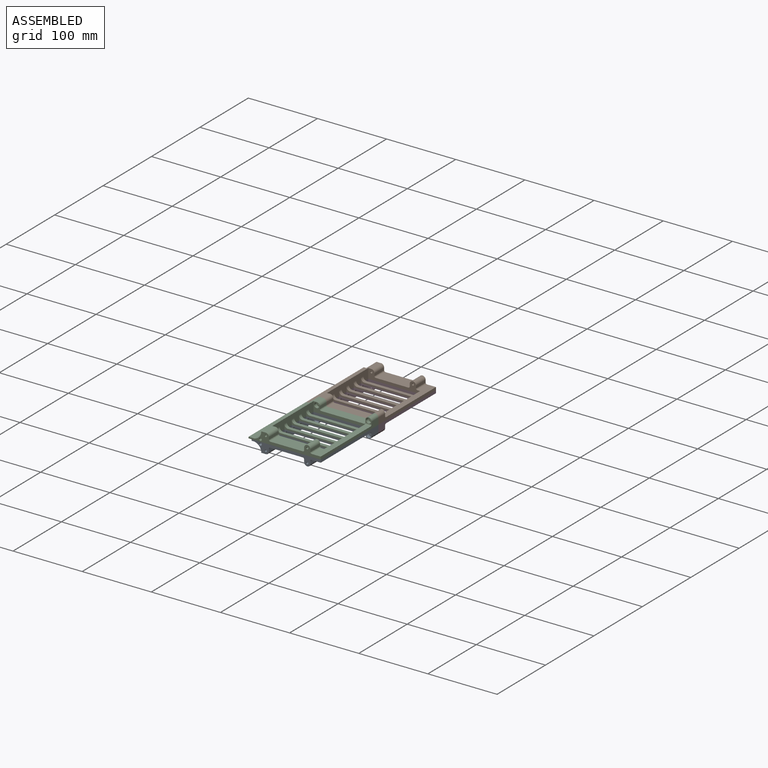
[diagram: assembled view]
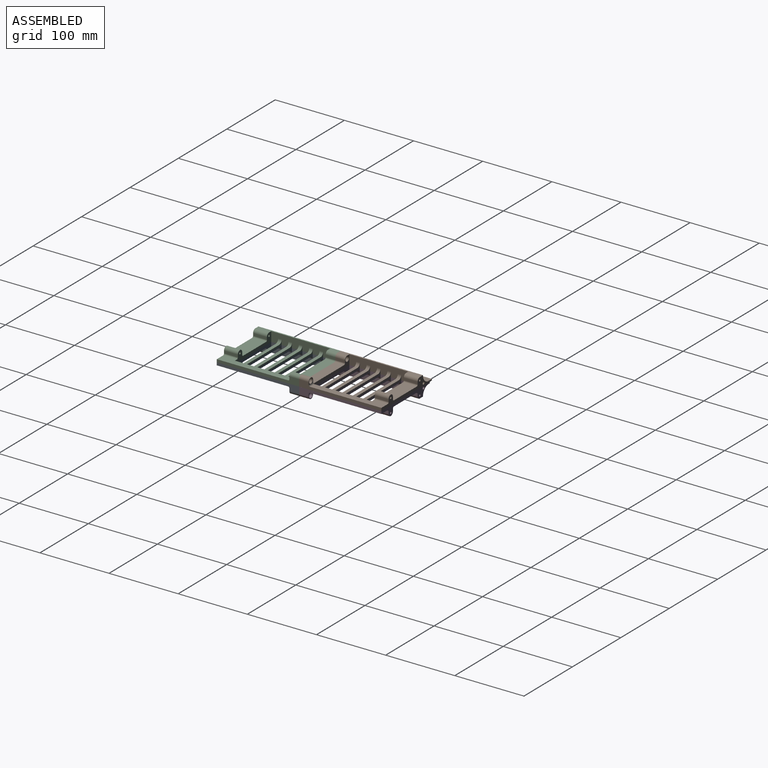
[diagram: assembled view, second angle]
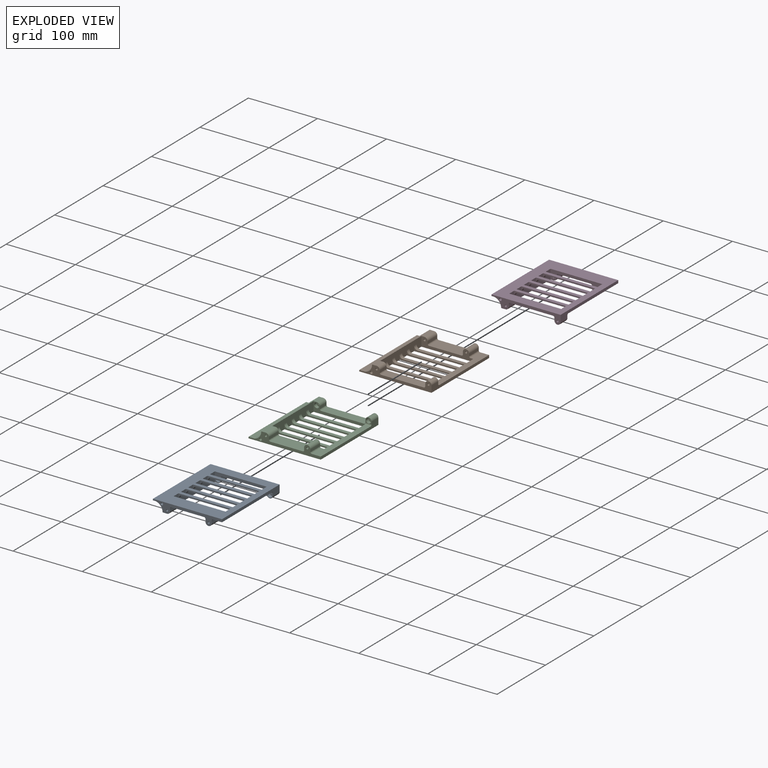
[diagram: exploded view]
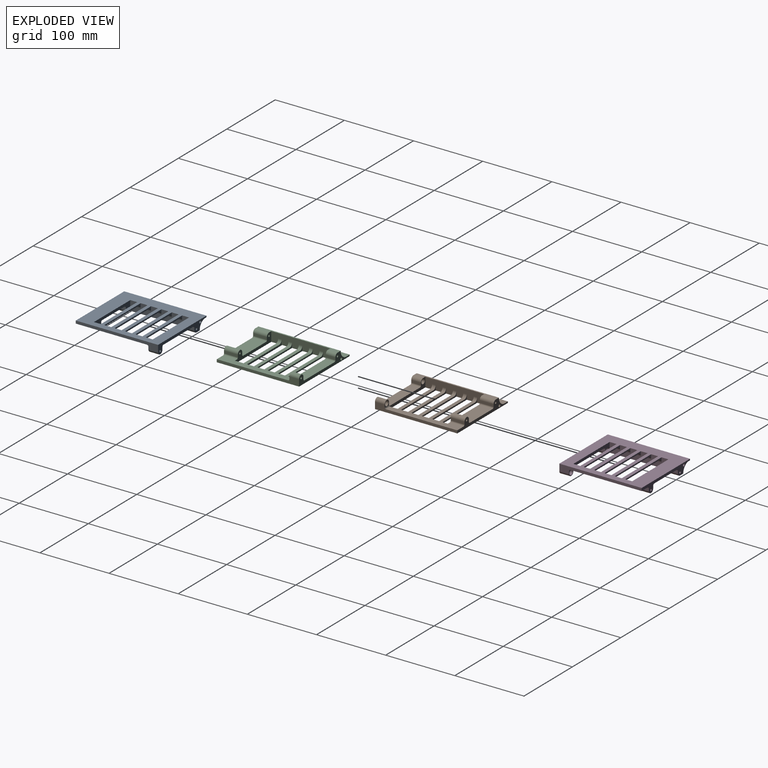
[diagram: exploded view, second angle]
ASSEMBLY  parts=4 mates=3
PART A: 59 faces, bbox 99.9x119x14 mm
  f0: plane 103x12.95mm, normal (0,0,1), area 1001.4mm2, adj f17,f18,f20,f27,f49,f52
  f1: plane 85x14mm, normal (1,0,0), area 1015mm2, adj f9,f11,f12,f13,f14,f15,f16,f20
  f2: plane 61.95x14mm, normal (0,0,1), area 867.2mm2, adj f12,f19,f48,f50
  f3: plane 47x20mm, normal (0,0,1), area 940mm2, adj f17,f20,f51,f53
  f4: plane 70x5mm, normal (0,0,1), area 350mm2, adj f21,f25,f27,f58
  f5: plane 70x5mm, normal (0,0,1), area 350mm2, adj f16,f24,f27,f57
  f6: plane 70x5mm, normal (0,0,1), area 350mm2, adj f15,f23,f27,f56
  f7: plane 70x5mm, normal (0,0,1), area 350mm2, adj f14,f22,f27,f55
  f8: plane 70x5mm, normal (0,0,1), area 350mm2, adj f11,f13,f27,f54
  f9: plane 119x6.5mm, normal (0,0,1), area 391mm2, adj f1,f12,f17,f19,f20,f29,f37,f39
  f10: plane 119x4mm, normal (0,0,1), area 476mm2, adj f17,f19,f26,f29
  f11: plane 75x7mm, normal (0,-1,0), area 155.4mm2, adj f1,f8,f27,f28,f54
  f12: plane 83.95x14mm, normal (0,1,0), area 373.8mm2, adj f1,f2,f9,f18,f27,f28,f34,f35
  f13: plane 75x7mm, normal (0,1,0), area 155.4mm2, adj f1,f8,f27,f28,f54
  f14: plane 75x7mm, normal (0,1,0), area 155.4mm2, adj f1,f7,f27,f28,f55
  f15: plane 75x7mm, normal (0,1,0), area 155.4mm2, adj f1,f6,f27,f28,f56
  f16: plane 75x7mm, normal (0,1,0), area 155.4mm2, adj f1,f5,f27,f28,f57
  f17: plane 99.95x14mm, normal (0,1,0), area 565.2mm2, adj f0,f3,f9,f10,f18,f26,f28,f29
  f18: plane 119x9.5mm, normal (1,0,0), area 553.9mm2, adj f0,f12,f17,f19,f28,f36,f49
  f19: plane 99.95x14mm, normal (0,-1,0), area 564.4mm2, adj f2,f9,f10,f18,f26,f28,f29,f30
  f20: plane 75x14mm, normal (0,-1,0), area 455.4mm2, adj f0,f1,f3,f9,f27,f28,f31,f32
  f21: plane 75x7mm, normal (0,1,0), area 155.4mm2, adj f1,f4,f27,f28,f58
  f22: plane 75x7mm, normal (0,-1,0), area 155.4mm2, adj f1,f7,f27,f28,f55
  f23: plane 75x7mm, normal (0,-1,0), area 155.4mm2, adj f1,f6,f27,f28,f56
  f24: plane 75x7mm, normal (0,-1,0), area 155.4mm2, adj f1,f5,f27,f28,f57
  f25: plane 75x7mm, normal (0,-1,0), area 155.4mm2, adj f1,f4,f27,f28,f58
  f26: plane 119x2mm, normal (-1,0,0), area 238mm2, adj f10,f17,f19,f28
  f27: plane 85x6mm, normal (-1,0,0), area 290.9mm2, adj f0,f4,f5,f6,f7,f8,f11,f12
  f28: plane 119x99.95mm, normal (0,0,-1), area 7393.5mm2, adj f1,f11,f12,f13,f14,f15,f16,f17
  f29: cylinder r=12.08mm len=119mm, axis (0,1,0), area 2021.3mm2, adj f9,f10,f17,f19
  f30: cylinder r=1.9mm len=119mm, axis (0,1,0), area 1420.6mm2, adj f17,f19
  f31: plane 20x3.5mm, normal (1,0,0), area 70mm2, adj f17,f20,f38,f52
  f32: plane 20x3.5mm, normal (-1,0,0), area 70mm2, adj f17,f20,f38,f53
  f33: plane 20x3.5mm, normal (1,0,0), area 70mm2, adj f17,f20,f39,f51
  f34: plane 14x3.5mm, normal (-1,0,0), area 49mm2, adj f12,f19,f36,f50
  f35: plane 14x3.5mm, normal (1,0,0), area 49mm2, adj f12,f19,f37,f48
  f36: cylinder r=4.5mm len=14mm, axis (0,1,0), area 197.9mm2, adj f12,f18,f19,f34
  f37: cylinder r=4.5mm len=14mm, axis (0,1,0), area 99mm2, adj f9,f12,f19,f35
  f38: cylinder r=4.5mm len=20mm, axis (0,1,0), area 282.7mm2, adj f17,f20,f31,f32
  f39: cylinder r=4.5mm len=20mm, axis (0,1,0), area 141.4mm2, adj f9,f17,f20,f33
  f40: cylinder r=1.5mm len=9mm, axis (0,1,0), area 84.8mm2, adj f19,f41
  f41: plane 7x7mm, normal (0,1,0), area 31.4mm2, adj f40,f42
  f42: cylinder r=3.5mm len=7mm, axis (0,1,0), area 110mm2, adj f12,f41
  f43: cylinder r=1.5mm len=9mm, axis (0,1,0), area 84.8mm2, adj f19,f44
  f44: plane 7x7mm, normal (0,1,0), area 31.4mm2, adj f43,f45
  f45: cylinder r=3.5mm len=7mm, axis (0,1,0), area 110mm2, adj f12,f44
  f46: cylinder r=1.5mm len=20mm, axis (0,1,0), area 188.5mm2, adj f17,f20
  f47: cylinder r=1.5mm len=20mm, axis (0,1,0), area 188.5mm2, adj f17,f20
  f48: cylinder r=2mm len=14mm, axis (0,1,0), area 44mm2, adj f2,f12,f19,f35
  f49: cylinder r=2mm len=8.95mm, axis (-1,0,0), area 28.1mm2, adj f0,f12,f18,f27
  f50: cylinder r=2mm len=14mm, axis (0,-1,0), area 44mm2, adj f2,f12,f19,f34
  f51: cylinder r=2mm len=20mm, axis (0,1,0), area 62.8mm2, adj f3,f17,f20,f33
  f52: cylinder r=2mm len=20mm, axis (0,1,0), area 62.8mm2, adj f0,f17,f20,f31
  f53: cylinder r=2mm len=20mm, axis (0,-1,0), area 62.8mm2, adj f3,f17,f20,f32
  f54: cylinder r=5mm len=5mm, axis (0,-1,0), area 39.3mm2, adj f1,f8,f11,f13
  f55: cylinder r=5mm len=5mm, axis (0,-1,0), area 39.3mm2, adj f1,f7,f14,f22
  f56: cylinder r=5mm len=5mm, axis (0,-1,0), area 39.3mm2, adj f1,f6,f15,f23
  f57: cylinder r=5mm len=5mm, axis (0,-1,0), area 39.3mm2, adj f1,f5,f16,f24
  f58: cylinder r=5mm len=5mm, axis (0,-1,0), area 39.3mm2, adj f1,f4,f21,f25
PART B: 59 faces, bbox 104.4x119x14 mm
  f0: plane 103x12.95mm, normal (0,0,1), area 1001.4mm2, adj f17,f18,f20,f27,f49,f52
  f1: plane 85x14mm, normal (1,0,0), area 1015mm2, adj f9,f11,f12,f13,f14,f15,f16,f20
  f2: plane 61.95x14mm, normal (0,0,1), area 867.2mm2, adj f12,f19,f48,f50
  f3: plane 47x20mm, normal (0,0,1), area 940mm2, adj f17,f20,f51,f53
  f4: plane 70x5mm, normal (0,0,1), area 350mm2, adj f21,f25,f27,f58
  f5: plane 70x5mm, normal (0,0,1), area 350mm2, adj f16,f24,f27,f57
  f6: plane 70x5mm, normal (0,0,1), area 350mm2, adj f15,f23,f27,f56
  f7: plane 70x5mm, normal (0,0,1), area 350mm2, adj f14,f22,f27,f55
  f8: plane 70x5mm, normal (0,0,1), area 350mm2, adj f11,f13,f27,f54
  f9: plane 119x6.5mm, normal (0,0,1), area 391mm2, adj f1,f12,f17,f19,f20,f29,f37,f39
  f10: plane 119x8.5mm, normal (0,0,1), area 1011.5mm2, adj f17,f19,f26,f29
  f11: plane 75x7mm, normal (0,-1,0), area 155.4mm2, adj f1,f8,f27,f28,f54
  f12: plane 83.95x14mm, normal (0,1,0), area 373.8mm2, adj f1,f2,f9,f18,f27,f28,f34,f35
  f13: plane 75x7mm, normal (0,1,0), area 155.4mm2, adj f1,f8,f27,f28,f54
  f14: plane 75x7mm, normal (0,1,0), area 155.4mm2, adj f1,f7,f27,f28,f55
  f15: plane 75x7mm, normal (0,1,0), area 155.4mm2, adj f1,f6,f27,f28,f56
  f16: plane 75x7mm, normal (0,1,0), area 155.4mm2, adj f1,f5,f27,f28,f57
  f17: plane 104.45x14mm, normal (0,1,0), area 574.2mm2, adj f0,f3,f9,f10,f18,f26,f28,f29
  f18: plane 119x9.5mm, normal (1,0,0), area 553.9mm2, adj f0,f12,f17,f19,f28,f36,f49
  f19: plane 104.45x14mm, normal (0,-1,0), area 573.4mm2, adj f2,f9,f10,f18,f26,f28,f29,f30
  f20: plane 75x14mm, normal (0,-1,0), area 455.4mm2, adj f0,f1,f3,f9,f27,f28,f31,f32
  f21: plane 75x7mm, normal (0,1,0), area 155.4mm2, adj f1,f4,f27,f28,f58
  f22: plane 75x7mm, normal (0,-1,0), area 155.4mm2, adj f1,f7,f27,f28,f55
  f23: plane 75x7mm, normal (0,-1,0), area 155.4mm2, adj f1,f6,f27,f28,f56
  f24: plane 75x7mm, normal (0,-1,0), area 155.4mm2, adj f1,f5,f27,f28,f57
  f25: plane 75x7mm, normal (0,-1,0), area 155.4mm2, adj f1,f4,f27,f28,f58
  f26: plane 119x2mm, normal (-1,0,0), area 238mm2, adj f10,f17,f19,f28
  f27: plane 85x6mm, normal (-1,0,0), area 290.9mm2, adj f0,f4,f5,f6,f7,f8,f11,f12
  f28: plane 119x104.45mm, normal (0,0,-1), area 7929mm2, adj f1,f11,f12,f13,f14,f15,f16,f17
  f29: cylinder r=12.08mm len=119mm, axis (0,1,0), area 2021.3mm2, adj f9,f10,f17,f19
  f30: cylinder r=1.9mm len=119mm, axis (0,1,0), area 1420.6mm2, adj f17,f19
  f31: plane 20x3.5mm, normal (1,0,0), area 70mm2, adj f17,f20,f38,f52
  f32: plane 20x3.5mm, normal (-1,0,0), area 70mm2, adj f17,f20,f38,f53
  f33: plane 20x3.5mm, normal (1,0,0), area 70mm2, adj f17,f20,f39,f51
  f34: plane 14x3.5mm, normal (-1,0,0), area 49mm2, adj f12,f19,f36,f50
  f35: plane 14x3.5mm, normal (1,0,0), area 49mm2, adj f12,f19,f37,f48
  f36: cylinder r=4.5mm len=14mm, axis (0,1,0), area 197.9mm2, adj f12,f18,f19,f34
  f37: cylinder r=4.5mm len=14mm, axis (0,1,0), area 99mm2, adj f9,f12,f19,f35
  f38: cylinder r=4.5mm len=20mm, axis (0,1,0), area 282.7mm2, adj f17,f20,f31,f32
  f39: cylinder r=4.5mm len=20mm, axis (0,1,0), area 141.4mm2, adj f9,f17,f20,f33
  f40: cylinder r=1.5mm len=9mm, axis (0,1,0), area 84.8mm2, adj f19,f41
  f41: plane 7x7mm, normal (0,1,0), area 31.4mm2, adj f40,f42
  f42: cylinder r=3.5mm len=7mm, axis (0,1,0), area 110mm2, adj f12,f41
  f43: cylinder r=1.5mm len=9mm, axis (0,1,0), area 84.8mm2, adj f19,f44
  f44: plane 7x7mm, normal (0,1,0), area 31.4mm2, adj f43,f45
  f45: cylinder r=3.5mm len=7mm, axis (0,1,0), area 110mm2, adj f12,f44
  f46: cylinder r=1.5mm len=20mm, axis (0,1,0), area 188.5mm2, adj f17,f20
  f47: cylinder r=1.5mm len=20mm, axis (0,1,0), area 188.5mm2, adj f17,f20
  f48: cylinder r=2mm len=14mm, axis (0,1,0), area 44mm2, adj f2,f12,f19,f35
  f49: cylinder r=2mm len=8.95mm, axis (-1,0,0), area 28.1mm2, adj f0,f12,f18,f27
  f50: cylinder r=2mm len=14mm, axis (0,-1,0), area 44mm2, adj f2,f12,f19,f34
  f51: cylinder r=2mm len=20mm, axis (0,1,0), area 62.8mm2, adj f3,f17,f20,f33
  f52: cylinder r=2mm len=20mm, axis (0,1,0), area 62.8mm2, adj f0,f17,f20,f31
  f53: cylinder r=2mm len=20mm, axis (0,-1,0), area 62.8mm2, adj f3,f17,f20,f32
  f54: cylinder r=5mm len=5mm, axis (0,-1,0), area 39.3mm2, adj f1,f8,f11,f13
  f55: cylinder r=5mm len=5mm, axis (0,-1,0), area 39.3mm2, adj f1,f7,f14,f22
  f56: cylinder r=5mm len=5mm, axis (0,-1,0), area 39.3mm2, adj f1,f6,f15,f23
  f57: cylinder r=5mm len=5mm, axis (0,-1,0), area 39.3mm2, adj f1,f5,f16,f24
  f58: cylinder r=5mm len=5mm, axis (0,-1,0), area 39.3mm2, adj f1,f4,f21,f25
PART C: 59 faces, bbox 104.4x119x14 mm
  f0: plane 103x12.95mm, normal (0,0,1), area 1001.4mm2, adj f17,f18,f20,f27,f49,f52
  f1: plane 85x14mm, normal (1,0,0), area 1015mm2, adj f9,f11,f12,f13,f14,f15,f16,f20
  f2: plane 61.95x14mm, normal (0,0,1), area 867.2mm2, adj f12,f19,f48,f50
  f3: plane 47x20mm, normal (0,0,1), area 940mm2, adj f17,f20,f51,f53
  f4: plane 70x5mm, normal (0,0,1), area 350mm2, adj f21,f25,f27,f58
  f5: plane 70x5mm, normal (0,0,1), area 350mm2, adj f16,f24,f27,f57
  f6: plane 70x5mm, normal (0,0,1), area 350mm2, adj f15,f23,f27,f56
  f7: plane 70x5mm, normal (0,0,1), area 350mm2, adj f14,f22,f27,f55
  f8: plane 70x5mm, normal (0,0,1), area 350mm2, adj f11,f13,f27,f54
  f9: plane 119x6.5mm, normal (0,0,1), area 391mm2, adj f1,f12,f17,f19,f20,f29,f37,f39
  f10: plane 119x8.5mm, normal (0,0,1), area 1011.5mm2, adj f17,f19,f26,f29
  f11: plane 75x7mm, normal (0,1,0), area 155.4mm2, adj f1,f8,f27,f28,f54
  f12: plane 83.95x14mm, normal (0,-1,0), area 373.8mm2, adj f1,f2,f9,f18,f27,f28,f34,f35
  f13: plane 75x7mm, normal (0,-1,0), area 155.4mm2, adj f1,f8,f27,f28,f54
  f14: plane 75x7mm, normal (0,-1,0), area 155.4mm2, adj f1,f7,f27,f28,f55
  f15: plane 75x7mm, normal (0,-1,0), area 155.4mm2, adj f1,f6,f27,f28,f56
  f16: plane 75x7mm, normal (0,-1,0), area 155.4mm2, adj f1,f5,f27,f28,f57
  f17: plane 104.45x14mm, normal (0,-1,0), area 574.2mm2, adj f0,f3,f9,f10,f18,f26,f28,f29
  f18: plane 119x9.5mm, normal (1,0,0), area 553.9mm2, adj f0,f12,f17,f19,f28,f36,f49
  f19: plane 104.45x14mm, normal (0,1,0), area 573.4mm2, adj f2,f9,f10,f18,f26,f28,f29,f30
  f20: plane 75x14mm, normal (0,1,0), area 455.4mm2, adj f0,f1,f3,f9,f27,f28,f31,f32
  f21: plane 75x7mm, normal (0,-1,0), area 155.4mm2, adj f1,f4,f27,f28,f58
  f22: plane 75x7mm, normal (0,1,0), area 155.4mm2, adj f1,f7,f27,f28,f55
  f23: plane 75x7mm, normal (0,1,0), area 155.4mm2, adj f1,f6,f27,f28,f56
  f24: plane 75x7mm, normal (0,1,0), area 155.4mm2, adj f1,f5,f27,f28,f57
  f25: plane 75x7mm, normal (0,1,0), area 155.4mm2, adj f1,f4,f27,f28,f58
  f26: plane 119x2mm, normal (-1,0,0), area 238mm2, adj f10,f17,f19,f28
  f27: plane 85x6mm, normal (-1,0,0), area 290.9mm2, adj f0,f4,f5,f6,f7,f8,f11,f12
  f28: plane 119x104.45mm, normal (0,0,-1), area 7929mm2, adj f1,f11,f12,f13,f14,f15,f16,f17
  f29: cylinder r=12.08mm len=119mm, axis (0,-1,0), area 2021.3mm2, adj f9,f10,f17,f19
  f30: cylinder r=1.9mm len=119mm, axis (0,-1,0), area 1420.6mm2, adj f17,f19
  f31: plane 20x3.5mm, normal (1,0,0), area 70mm2, adj f17,f20,f38,f52
  f32: plane 20x3.5mm, normal (-1,0,0), area 70mm2, adj f17,f20,f38,f53
  f33: plane 20x3.5mm, normal (1,0,0), area 70mm2, adj f17,f20,f39,f51
  f34: plane 14x3.5mm, normal (-1,0,0), area 49mm2, adj f12,f19,f36,f50
  f35: plane 14x3.5mm, normal (1,0,0), area 49mm2, adj f12,f19,f37,f48
  f36: cylinder r=4.5mm len=14mm, axis (0,-1,0), area 197.9mm2, adj f12,f18,f19,f34
  f37: cylinder r=4.5mm len=14mm, axis (0,-1,0), area 99mm2, adj f9,f12,f19,f35
  f38: cylinder r=4.5mm len=20mm, axis (0,-1,0), area 282.7mm2, adj f17,f20,f31,f32
  f39: cylinder r=4.5mm len=20mm, axis (0,-1,0), area 141.4mm2, adj f9,f17,f20,f33
  f40: cylinder r=1.5mm len=9mm, axis (0,-1,0), area 84.8mm2, adj f19,f41
  f41: plane 7x7mm, normal (0,-1,0), area 31.4mm2, adj f40,f42
  f42: cylinder r=3.5mm len=7mm, axis (0,-1,0), area 110mm2, adj f12,f41
  f43: cylinder r=1.5mm len=9mm, axis (0,-1,0), area 84.8mm2, adj f19,f44
  f44: plane 7x7mm, normal (0,-1,0), area 31.4mm2, adj f43,f45
  f45: cylinder r=3.5mm len=7mm, axis (0,-1,0), area 110mm2, adj f12,f44
  f46: cylinder r=1.5mm len=20mm, axis (0,-1,0), area 188.5mm2, adj f17,f20
  f47: cylinder r=1.5mm len=20mm, axis (0,-1,0), area 188.5mm2, adj f17,f20
  f48: cylinder r=2mm len=14mm, axis (0,-1,0), area 44mm2, adj f2,f12,f19,f35
  f49: cylinder r=2mm len=8.95mm, axis (-1,0,0), area 28.1mm2, adj f0,f12,f18,f27
  f50: cylinder r=2mm len=14mm, axis (0,1,0), area 44mm2, adj f2,f12,f19,f34
  f51: cylinder r=2mm len=20mm, axis (0,-1,0), area 62.8mm2, adj f3,f17,f20,f33
  f52: cylinder r=2mm len=20mm, axis (0,-1,0), area 62.8mm2, adj f0,f17,f20,f31
  f53: cylinder r=2mm len=20mm, axis (0,1,0), area 62.8mm2, adj f3,f17,f20,f32
  f54: cylinder r=5mm len=5mm, axis (0,1,0), area 39.3mm2, adj f1,f8,f11,f13
  f55: cylinder r=5mm len=5mm, axis (0,1,0), area 39.3mm2, adj f1,f7,f14,f22
  f56: cylinder r=5mm len=5mm, axis (0,1,0), area 39.3mm2, adj f1,f6,f15,f23
  f57: cylinder r=5mm len=5mm, axis (0,1,0), area 39.3mm2, adj f1,f5,f16,f24
  f58: cylinder r=5mm len=5mm, axis (0,1,0), area 39.3mm2, adj f1,f4,f21,f25
PART D: 59 faces, bbox 99.9x119x14 mm
  f0: plane 103x12.95mm, normal (0,0,1), area 1001.4mm2, adj f17,f18,f20,f27,f49,f52
  f1: plane 85x14mm, normal (1,0,0), area 1015mm2, adj f9,f11,f12,f13,f14,f15,f16,f20
  f2: plane 61.95x14mm, normal (0,0,1), area 867.2mm2, adj f12,f19,f48,f50
  f3: plane 47x20mm, normal (0,0,1), area 940mm2, adj f17,f20,f51,f53
  f4: plane 70x5mm, normal (0,0,1), area 350mm2, adj f21,f25,f27,f58
  f5: plane 70x5mm, normal (0,0,1), area 350mm2, adj f16,f24,f27,f57
  f6: plane 70x5mm, normal (0,0,1), area 350mm2, adj f15,f23,f27,f56
  f7: plane 70x5mm, normal (0,0,1), area 350mm2, adj f14,f22,f27,f55
  f8: plane 70x5mm, normal (0,0,1), area 350mm2, adj f11,f13,f27,f54
  f9: plane 119x6.5mm, normal (0,0,1), area 391mm2, adj f1,f12,f17,f19,f20,f29,f37,f39
  f10: plane 119x4mm, normal (0,0,1), area 476mm2, adj f17,f19,f26,f29
  f11: plane 75x7mm, normal (0,1,0), area 155.4mm2, adj f1,f8,f27,f28,f54
  f12: plane 83.95x14mm, normal (0,-1,0), area 373.8mm2, adj f1,f2,f9,f18,f27,f28,f34,f35
  f13: plane 75x7mm, normal (0,-1,0), area 155.4mm2, adj f1,f8,f27,f28,f54
  f14: plane 75x7mm, normal (0,-1,0), area 155.4mm2, adj f1,f7,f27,f28,f55
  f15: plane 75x7mm, normal (0,-1,0), area 155.4mm2, adj f1,f6,f27,f28,f56
  f16: plane 75x7mm, normal (0,-1,0), area 155.4mm2, adj f1,f5,f27,f28,f57
  f17: plane 99.95x14mm, normal (0,-1,0), area 565.2mm2, adj f0,f3,f9,f10,f18,f26,f28,f29
  f18: plane 119x9.5mm, normal (1,0,0), area 553.9mm2, adj f0,f12,f17,f19,f28,f36,f49
  f19: plane 99.95x14mm, normal (0,1,0), area 564.4mm2, adj f2,f9,f10,f18,f26,f28,f29,f30
  f20: plane 75x14mm, normal (0,1,0), area 455.4mm2, adj f0,f1,f3,f9,f27,f28,f31,f32
  f21: plane 75x7mm, normal (0,-1,0), area 155.4mm2, adj f1,f4,f27,f28,f58
  f22: plane 75x7mm, normal (0,1,0), area 155.4mm2, adj f1,f7,f27,f28,f55
  f23: plane 75x7mm, normal (0,1,0), area 155.4mm2, adj f1,f6,f27,f28,f56
  f24: plane 75x7mm, normal (0,1,0), area 155.4mm2, adj f1,f5,f27,f28,f57
  f25: plane 75x7mm, normal (0,1,0), area 155.4mm2, adj f1,f4,f27,f28,f58
  f26: plane 119x2mm, normal (-1,0,0), area 238mm2, adj f10,f17,f19,f28
  f27: plane 85x6mm, normal (-1,0,0), area 290.9mm2, adj f0,f4,f5,f6,f7,f8,f11,f12
  f28: plane 119x99.95mm, normal (0,0,-1), area 7393.5mm2, adj f1,f11,f12,f13,f14,f15,f16,f17
  f29: cylinder r=12.08mm len=119mm, axis (0,-1,0), area 2021.3mm2, adj f9,f10,f17,f19
  f30: cylinder r=1.9mm len=119mm, axis (0,-1,0), area 1420.6mm2, adj f17,f19
  f31: plane 20x3.5mm, normal (1,0,0), area 70mm2, adj f17,f20,f38,f52
  f32: plane 20x3.5mm, normal (-1,0,0), area 70mm2, adj f17,f20,f38,f53
  f33: plane 20x3.5mm, normal (1,0,0), area 70mm2, adj f17,f20,f39,f51
  f34: plane 14x3.5mm, normal (-1,0,0), area 49mm2, adj f12,f19,f36,f50
  f35: plane 14x3.5mm, normal (1,0,0), area 49mm2, adj f12,f19,f37,f48
  f36: cylinder r=4.5mm len=14mm, axis (0,-1,0), area 197.9mm2, adj f12,f18,f19,f34
  f37: cylinder r=4.5mm len=14mm, axis (0,-1,0), area 99mm2, adj f9,f12,f19,f35
  f38: cylinder r=4.5mm len=20mm, axis (0,-1,0), area 282.7mm2, adj f17,f20,f31,f32
  f39: cylinder r=4.5mm len=20mm, axis (0,-1,0), area 141.4mm2, adj f9,f17,f20,f33
  f40: cylinder r=1.5mm len=9mm, axis (0,-1,0), area 84.8mm2, adj f19,f41
  f41: plane 7x7mm, normal (0,-1,0), area 31.4mm2, adj f40,f42
  f42: cylinder r=3.5mm len=7mm, axis (0,-1,0), area 110mm2, adj f12,f41
  f43: cylinder r=1.5mm len=9mm, axis (0,-1,0), area 84.8mm2, adj f19,f44
  f44: plane 7x7mm, normal (0,-1,0), area 31.4mm2, adj f43,f45
  f45: cylinder r=3.5mm len=7mm, axis (0,-1,0), area 110mm2, adj f12,f44
  f46: cylinder r=1.5mm len=20mm, axis (0,-1,0), area 188.5mm2, adj f17,f20
  f47: cylinder r=1.5mm len=20mm, axis (0,-1,0), area 188.5mm2, adj f17,f20
  f48: cylinder r=2mm len=14mm, axis (0,-1,0), area 44mm2, adj f2,f12,f19,f35
  f49: cylinder r=2mm len=8.95mm, axis (-1,0,0), area 28.1mm2, adj f0,f12,f18,f27
  f50: cylinder r=2mm len=14mm, axis (0,1,0), area 44mm2, adj f2,f12,f19,f34
  f51: cylinder r=2mm len=20mm, axis (0,-1,0), area 62.8mm2, adj f3,f17,f20,f33
  f52: cylinder r=2mm len=20mm, axis (0,-1,0), area 62.8mm2, adj f0,f17,f20,f31
  f53: cylinder r=2mm len=20mm, axis (0,1,0), area 62.8mm2, adj f3,f17,f20,f32
  f54: cylinder r=5mm len=5mm, axis (0,1,0), area 39.3mm2, adj f1,f8,f11,f13
  f55: cylinder r=5mm len=5mm, axis (0,1,0), area 39.3mm2, adj f1,f7,f14,f22
  f56: cylinder r=5mm len=5mm, axis (0,1,0), area 39.3mm2, adj f1,f6,f15,f23
  f57: cylinder r=5mm len=5mm, axis (0,1,0), area 39.3mm2, adj f1,f5,f16,f24
  f58: cylinder r=5mm len=5mm, axis (0,1,0), area 39.3mm2, adj f1,f4,f21,f25
PLACE A rot(axis=(1,0,0),180deg) t=(57.84,65.5,23.27)mm
PLACE B t=(57.84,-52.75,23.27)mm
PLACE C t=(57.84,-53.25,23.27)mm
PLACE D rot(axis=(1,0,0),180deg) t=(57.84,66,23.27)mm
MATE fastened D.f37 <-> A.f37  axis (0,-1,0) through (-5.66,6.38,13.77)mm
MATE fastened B.f37 <-> C.f37  axis (0,-1,0) through (-5.66,6.38,32.77)mm
MATE fastened A.f28 <-> C.f28  axis (0,0,1) through (73.79,6.38,23.27)mm
